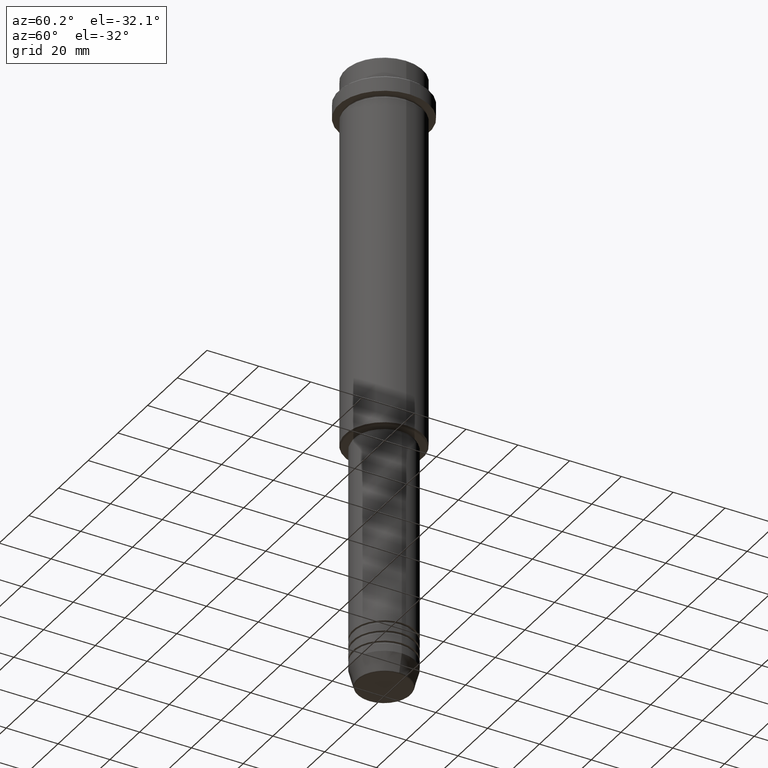
[diagram: clean part render]
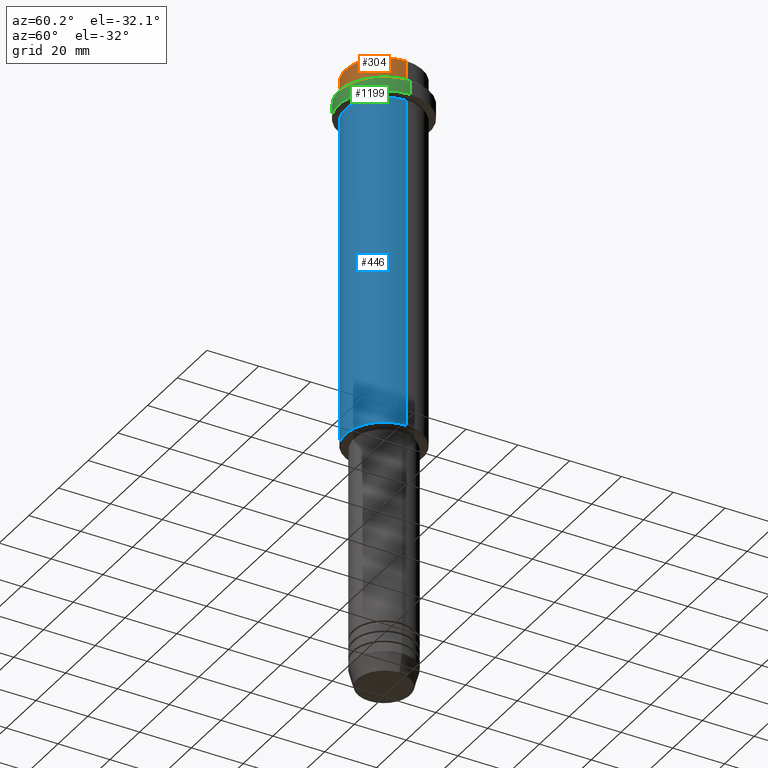
[diagram: same view with three faces highlighted in distinct colors, each labeled with its STEP entity id]
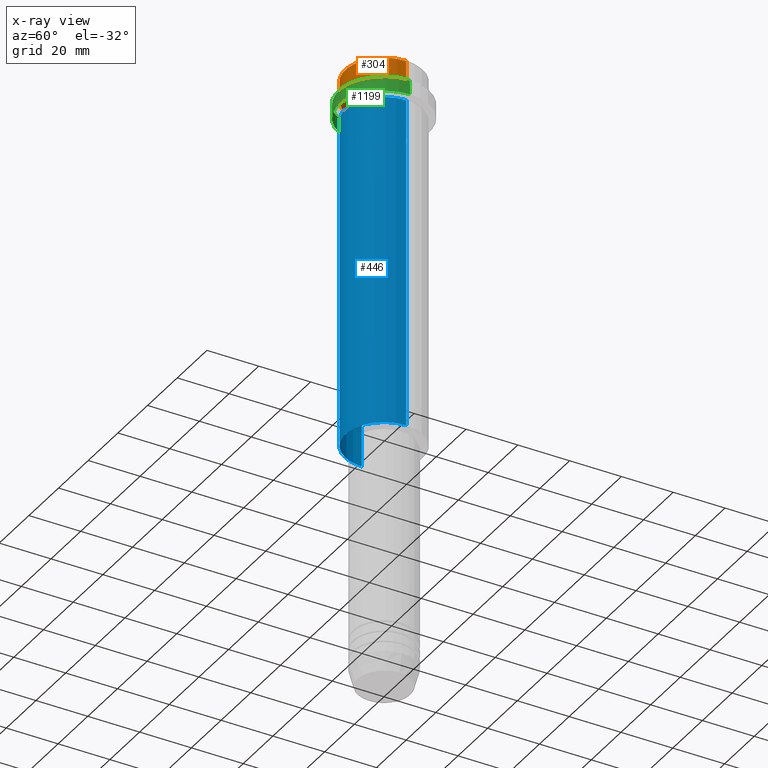
[diagram: x-ray of the same camera — body ghosted, the three highlighted faces saturated]
A machine part, auxiliary view with three faces highlighted in distinct colors.
The next image is the same camera in x-ray (body ghosted, the three faces saturated) — at least one of them is partly hidden behind the body in this view.
Their STEP definitions:

[orange] entity #304 — the highlighted cylindrical surface (partial cylindrical patch) has radius 15 mm, axis along (-0, -0, 1).
#9 = DIRECTION ( 'NONE',  ( -0.000000000000000000, -0.000000000000000000, 1.000000000000000000 ) ) ;
#19 = DIRECTION ( 'NONE',  ( -0.000000000000000000, -0.000000000000000000, 1.000000000000000000 ) ) ;
#25 = CARTESIAN_POINT ( 'NONE',  ( 0.000000000000000000, 0.000000000000000000, -0.4999999999999831246 ) ) ;
#48 = EDGE_CURVE ( 'NONE', #693, #1197, #515, .T. ) ;
#121 = CARTESIAN_POINT ( 'NONE',  ( -15.00000000000000000, 1.836970198721029589E-15, -7.999999999999998224 ) ) ;
#147 = CIRCLE ( 'NONE', #717, 15.00000000000000000 ) ;
#212 = EDGE_CURVE ( 'NONE', #1314, #693, #147, .T. ) ;
#252 = FACE_OUTER_BOUND ( 'NONE', #312, .T. ) ;
#304 = ADVANCED_FACE ( 'NONE', ( #252 ), #898, .T. ) ;
#305 = VERTEX_POINT ( 'NONE', #352 ) ;
#312 = EDGE_LOOP ( 'NONE', ( #413, #937, #1219, #1239 ) ) ;
#313 = DIRECTION ( 'NONE',  ( 1.000000000000000000, 0.000000000000000000, 0.000000000000000000 ) ) ;
#352 = CARTESIAN_POINT ( 'NONE',  ( -15.00000000000000000, 1.836970198721029589E-15, -0.4999999999999831246 ) ) ;
#353 = EDGE_CURVE ( 'NONE', #1314, #305, #1118, .T. ) ;
#391 = EDGE_CURVE ( 'NONE', #1197, #305, #1311, .T. ) ;
#413 = ORIENTED_EDGE ( 'NONE', *, *, #353, .F. ) ;
#515 = LINE ( 'NONE', #844, #626 ) ;
#583 = AXIS2_PLACEMENT_3D ( 'NONE', #25, #1247, #1353 ) ;
#626 = VECTOR ( 'NONE', #960, 1000.000000000000000 ) ;
#693 = VERTEX_POINT ( 'NONE', #976 ) ;
#699 = DIRECTION ( 'NONE',  ( 1.000000000000000000, 0.000000000000000000, 0.000000000000000000 ) ) ;
#717 = AXIS2_PLACEMENT_3D ( 'NONE', #991, #9, #313 ) ;
#814 = CARTESIAN_POINT ( 'NONE',  ( -15.00000000000000000, 1.836970198721029589E-15, 0.000000000000000000 ) ) ;
#844 = CARTESIAN_POINT ( 'NONE',  ( 15.00000000000000000, 0.000000000000000000, 0.000000000000000000 ) ) ;
#893 = CARTESIAN_POINT ( 'NONE',  ( 15.00000000000000000, 0.000000000000000000, -0.4999999999999831246 ) ) ;
#898 = CYLINDRICAL_SURFACE ( 'NONE', #1017, 15.00000000000000000 ) ;
#903 = DIRECTION ( 'NONE',  ( -0.000000000000000000, -0.000000000000000000, 1.000000000000000000 ) ) ;
#937 = ORIENTED_EDGE ( 'NONE', *, *, #212, .T. ) ;
#960 = DIRECTION ( 'NONE',  ( -0.000000000000000000, -0.000000000000000000, 1.000000000000000000 ) ) ;
#976 = CARTESIAN_POINT ( 'NONE',  ( 15.00000000000000000, 0.000000000000000000, -7.999999999999998224 ) ) ;
#991 = CARTESIAN_POINT ( 'NONE',  ( 0.000000000000000000, 0.000000000000000000, -7.999999999999998224 ) ) ;
#1017 = AXIS2_PLACEMENT_3D ( 'NONE', #1335, #903, #699 ) ;
#1118 = LINE ( 'NONE', #814, #1356 ) ;
#1197 = VERTEX_POINT ( 'NONE', #893 ) ;
#1219 = ORIENTED_EDGE ( 'NONE', *, *, #48, .T. ) ;
#1239 = ORIENTED_EDGE ( 'NONE', *, *, #391, .T. ) ;
#1247 = DIRECTION ( 'NONE',  ( 0.000000000000000000, 0.000000000000000000, -1.000000000000000000 ) ) ;
#1311 = CIRCLE ( 'NONE', #583, 15.00000000000000000 ) ;
#1314 = VERTEX_POINT ( 'NONE', #121 ) ;
#1335 = CARTESIAN_POINT ( 'NONE',  ( 0.000000000000000000, 0.000000000000000000, 0.000000000000000000 ) ) ;
#1353 = DIRECTION ( 'NONE',  ( 1.000000000000000000, 0.000000000000000000, 0.000000000000000000 ) ) ;
#1356 = VECTOR ( 'NONE', #19, 1000.000000000000000 ) ;

[blue] entity #446 — the highlighted cylindrical surface (partial cylindrical patch) has radius 15 mm, axis along (-0, -0, 1).
#40 = VERTEX_POINT ( 'NONE', #390 ) ;
#63 = DIRECTION ( 'NONE',  ( -0.000000000000000000, -0.000000000000000000, 1.000000000000000000 ) ) ;
#168 = CIRCLE ( 'NONE', #239, 15.00000000000000178 ) ;
#239 = AXIS2_PLACEMENT_3D ( 'NONE', #972, #979, #430 ) ;
#271 = EDGE_CURVE ( 'NONE', #40, #798, #168, .T. ) ;
#274 = DIRECTION ( 'NONE',  ( -1.000000000000000000, 0.000000000000000000, 0.000000000000000000 ) ) ;
#310 = DIRECTION ( 'NONE',  ( -0.000000000000000000, -0.000000000000000000, 1.000000000000000000 ) ) ;
#372 = CARTESIAN_POINT ( 'NONE',  ( 0.000000000000000000, 0.000000000000000000, 0.000000000000000000 ) ) ;
#390 = CARTESIAN_POINT ( 'NONE',  ( -15.00000000000000355, 1.836970198721029983E-15, -16.00000000000000000 ) ) ;
#399 = VECTOR ( 'NONE', #982, 1000.000000000000000 ) ;
#430 = DIRECTION ( 'NONE',  ( 1.000000000000000000, 0.000000000000000000, 0.000000000000000000 ) ) ;
#440 = EDGE_LOOP ( 'NONE', ( #685, #1211, #593, #1103 ) ) ;
#446 = ADVANCED_FACE ( 'NONE', ( #917 ), #1348, .T. ) ;
#450 = CARTESIAN_POINT ( 'NONE',  ( -15.00000000000000000, 1.836970198721029589E-15, 0.000000000000000000 ) ) ;
#538 = CIRCLE ( 'NONE', #1085, 15.00000000000000000 ) ;
#557 = LINE ( 'NONE', #1070, #399 ) ;
#593 = ORIENTED_EDGE ( 'NONE', *, *, #708, .T. ) ;
#652 = EDGE_CURVE ( 'NONE', #1098, #40, #1200, .T. ) ;
#685 = ORIENTED_EDGE ( 'NONE', *, *, #652, .F. ) ;
#708 = EDGE_CURVE ( 'NONE', #988, #798, #557, .T. ) ;
#715 = CARTESIAN_POINT ( 'NONE',  ( 15.00000000000000000, 0.000000000000000000, -144.5000000000000568 ) ) ;
#798 = VERTEX_POINT ( 'NONE', #999 ) ;
#805 = DIRECTION ( 'NONE',  ( -0.000000000000000000, -0.000000000000000000, 1.000000000000000000 ) ) ;
#840 = CARTESIAN_POINT ( 'NONE',  ( 0.000000000000000000, 0.000000000000000000, -144.5000000000000568 ) ) ;
#917 = FACE_OUTER_BOUND ( 'NONE', #440, .T. ) ;
#920 = EDGE_CURVE ( 'NONE', #1098, #988, #538, .T. ) ;
#972 = CARTESIAN_POINT ( 'NONE',  ( 0.000000000000000000, 0.000000000000000000, -16.00000000000000000 ) ) ;
#979 = DIRECTION ( 'NONE',  ( -0.000000000000000000, -0.000000000000000000, 1.000000000000000000 ) ) ;
#982 = DIRECTION ( 'NONE',  ( -0.000000000000000000, -0.000000000000000000, 1.000000000000000000 ) ) ;
#988 = VERTEX_POINT ( 'NONE', #715 ) ;
#999 = CARTESIAN_POINT ( 'NONE',  ( 15.00000000000000178, 0.000000000000000000, -16.00000000000000000 ) ) ;
#1070 = CARTESIAN_POINT ( 'NONE',  ( 15.00000000000000000, 0.000000000000000000, 0.000000000000000000 ) ) ;
#1085 = AXIS2_PLACEMENT_3D ( 'NONE', #840, #63, #274 ) ;
#1098 = VERTEX_POINT ( 'NONE', #1294 ) ;
#1103 = ORIENTED_EDGE ( 'NONE', *, *, #271, .F. ) ;
#1200 = LINE ( 'NONE', #450, #1266 ) ;
#1211 = ORIENTED_EDGE ( 'NONE', *, *, #920, .T. ) ;
#1221 = AXIS2_PLACEMENT_3D ( 'NONE', #372, #805, #1238 ) ;
#1238 = DIRECTION ( 'NONE',  ( 1.000000000000000000, 0.000000000000000000, 0.000000000000000000 ) ) ;
#1266 = VECTOR ( 'NONE', #310, 1000.000000000000000 ) ;
#1294 = CARTESIAN_POINT ( 'NONE',  ( -15.00000000000000000, 1.836970198721029589E-15, -144.5000000000000568 ) ) ;
#1348 = CYLINDRICAL_SURFACE ( 'NONE', #1221, 15.00000000000000000 ) ;

[green] entity #1199 — the highlighted cylindrical surface (partial cylindrical patch) has radius 17.5 mm, axis along (-0, -0, 1).
#104 = VECTOR ( 'NONE', #754, 1000.000000000000000 ) ;
#107 = CARTESIAN_POINT ( 'NONE',  ( 0.000000000000000000, 0.000000000000000000, 0.000000000000000000 ) ) ;
#156 = EDGE_CURVE ( 'NONE', #892, #1329, #1177, .T. ) ;
#236 = CARTESIAN_POINT ( 'NONE',  ( 0.000000000000000000, 0.000000000000000000, -9.499999999999973355 ) ) ;
#269 = CARTESIAN_POINT ( 'NONE',  ( 17.50000000000000000, 0.000000000000000000, -15.00000000000000178 ) ) ;
#270 = CARTESIAN_POINT ( 'NONE',  ( -17.50000000000000000, 2.143131898507868248E-15, -15.00000000000000178 ) ) ;
#297 = VERTEX_POINT ( 'NONE', #270 ) ;
#325 = CARTESIAN_POINT ( 'NONE',  ( 17.50000000000000000, 0.000000000000000000, 0.000000000000000000 ) ) ;
#337 = CIRCLE ( 'NONE', #428, 17.50000000000000000 ) ;
#380 = CARTESIAN_POINT ( 'NONE',  ( 17.50000000000000000, 0.000000000000000000, -9.499999999999973355 ) ) ;
#415 = LINE ( 'NONE', #432, #104 ) ;
#419 = ORIENTED_EDGE ( 'NONE', *, *, #1256, .T. ) ;
#428 = AXIS2_PLACEMENT_3D ( 'NONE', #1339, #1212, #683 ) ;
#432 = CARTESIAN_POINT ( 'NONE',  ( -17.50000000000000000, 2.143131898507868248E-15, 0.000000000000000000 ) ) ;
#447 = EDGE_LOOP ( 'NONE', ( #707, #419, #646, #524 ) ) ;
#524 = ORIENTED_EDGE ( 'NONE', *, *, #1245, .T. ) ;
#555 = FACE_OUTER_BOUND ( 'NONE', #447, .T. ) ;
#561 = DIRECTION ( 'NONE',  ( 1.000000000000000000, 0.000000000000000000, 0.000000000000000000 ) ) ;
#646 = ORIENTED_EDGE ( 'NONE', *, *, #156, .T. ) ;
#673 = DIRECTION ( 'NONE',  ( 1.000000000000000000, 0.000000000000000000, 0.000000000000000000 ) ) ;
#683 = DIRECTION ( 'NONE',  ( 1.000000000000000000, 0.000000000000000000, 0.000000000000000000 ) ) ;
#707 = ORIENTED_EDGE ( 'NONE', *, *, #1068, .F. ) ;
#754 = DIRECTION ( 'NONE',  ( -0.000000000000000000, -0.000000000000000000, 1.000000000000000000 ) ) ;
#796 = CYLINDRICAL_SURFACE ( 'NONE', #912, 17.50000000000000000 ) ;
#888 = AXIS2_PLACEMENT_3D ( 'NONE', #236, #1010, #673 ) ;
#892 = VERTEX_POINT ( 'NONE', #269 ) ;
#912 = AXIS2_PLACEMENT_3D ( 'NONE', #107, #987, #561 ) ;
#927 = VECTOR ( 'NONE', #1312, 1000.000000000000000 ) ;
#987 = DIRECTION ( 'NONE',  ( -0.000000000000000000, -0.000000000000000000, 1.000000000000000000 ) ) ;
#1010 = DIRECTION ( 'NONE',  ( 0.000000000000000000, 0.000000000000000000, -1.000000000000000000 ) ) ;
#1045 = CARTESIAN_POINT ( 'NONE',  ( -17.50000000000000000, 2.143131898507868248E-15, -9.499999999999973355 ) ) ;
#1067 = CIRCLE ( 'NONE', #888, 17.50000000000000000 ) ;
#1068 = EDGE_CURVE ( 'NONE', #297, #1354, #415, .T. ) ;
#1177 = LINE ( 'NONE', #325, #927 ) ;
#1199 = ADVANCED_FACE ( 'NONE', ( #555 ), #796, .T. ) ;
#1212 = DIRECTION ( 'NONE',  ( -0.000000000000000000, -0.000000000000000000, 1.000000000000000000 ) ) ;
#1245 = EDGE_CURVE ( 'NONE', #1329, #1354, #1067, .T. ) ;
#1256 = EDGE_CURVE ( 'NONE', #297, #892, #337, .T. ) ;
#1312 = DIRECTION ( 'NONE',  ( -0.000000000000000000, -0.000000000000000000, 1.000000000000000000 ) ) ;
#1329 = VERTEX_POINT ( 'NONE', #380 ) ;
#1339 = CARTESIAN_POINT ( 'NONE',  ( 0.000000000000000000, 0.000000000000000000, -15.00000000000000178 ) ) ;
#1354 = VERTEX_POINT ( 'NONE', #1045 ) ;